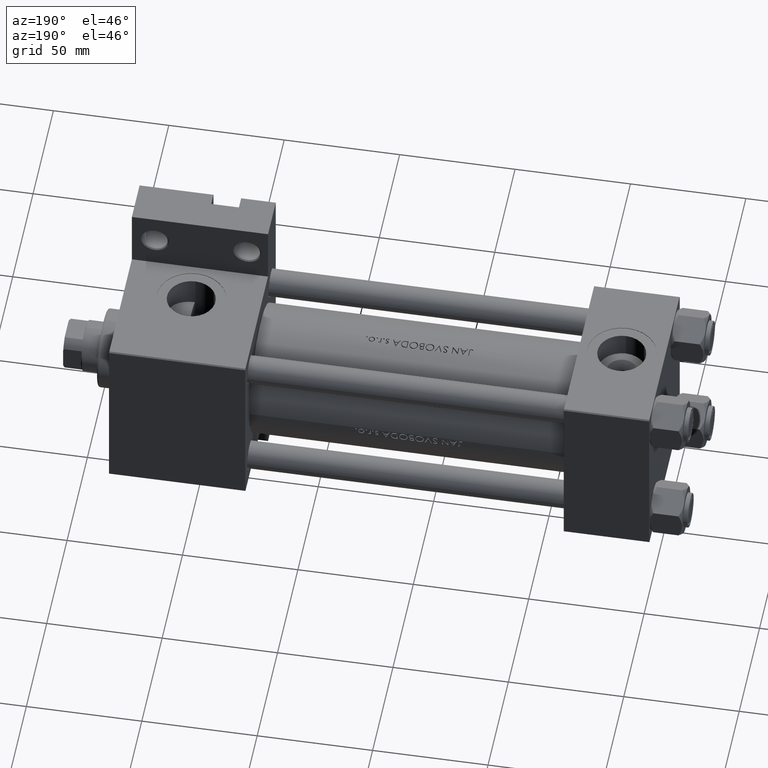
[diagram: clean part render]
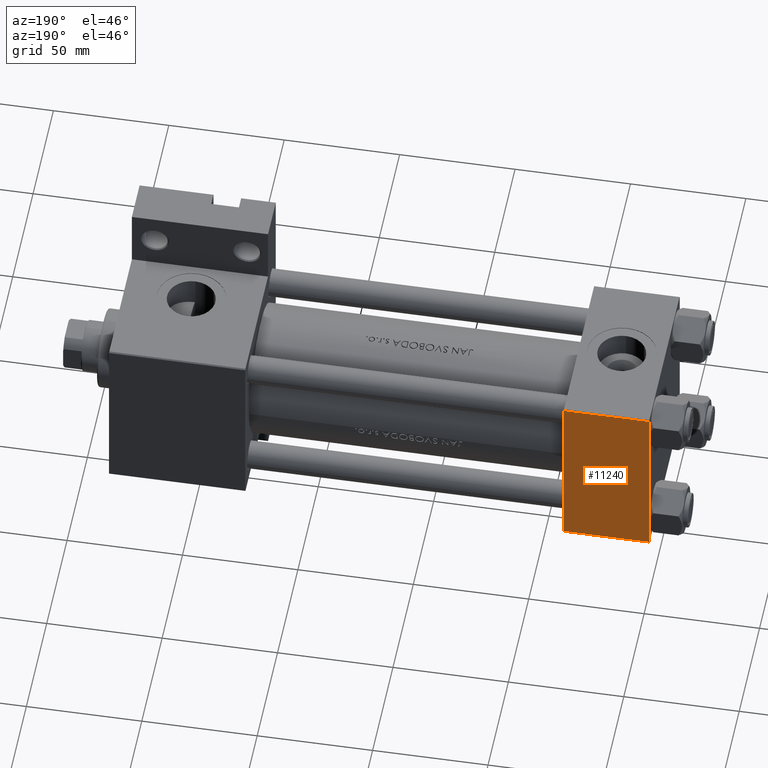
[diagram: same view with one face highlighted and labeled with its STEP entity id]
A machine part, auxiliary view. The second image highlights one B-rep face of the part: STEP entity #11240.
In plain terms, the highlighted planar face has unit normal (0, -1, -0).
Its self-contained STEP definition (entity closure, byte-faithful):
#728 = VERTEX_POINT ( 'NONE', #33155 ) ;
#1588 = ORIENTED_EDGE ( 'NONE', *, *, #11286, .T. ) ;
#1762 = CARTESIAN_POINT ( 'NONE',  ( 37.00000000000000000, -37.00000000000000711, 37.49999999999999289 ) ) ;
#5151 = VERTEX_POINT ( 'NONE', #25900 ) ;
#5977 = EDGE_CURVE ( 'NONE', #26714, #5151, #32265, .T. ) ;
#7653 = AXIS2_PLACEMENT_3D ( 'NONE', #35523, #19919, #26974 ) ;
#8899 = CARTESIAN_POINT ( 'NONE',  ( 37.00000000000000000, 36.99999999999999289, 37.50000000000000000 ) ) ;
#9562 = ORIENTED_EDGE ( 'NONE', *, *, #30145, .F. ) ;
#11240 = ADVANCED_FACE ( 'NONE', ( #31263 ), #27732, .F. ) ;
#11286 = EDGE_CURVE ( 'NONE', #14387, #26714, #34521, .T. ) ;
#13254 = CARTESIAN_POINT ( 'NONE',  ( 37.00000000000000000, 37.49999999999999289, 37.50000000000000000 ) ) ;
#14387 = VERTEX_POINT ( 'NONE', #8899 ) ;
#19919 = DIRECTION ( 'NONE',  ( 0.000000000000000000, 9.251858538542971581E-17, -1.000000000000000000 ) ) ;
#21073 = DIRECTION ( 'NONE',  ( 0.000000000000000000, -1.000000000000000000, -9.251858538542971581E-17 ) ) ;
#23977 = DIRECTION ( 'NONE',  ( 0.000000000000000000, -1.000000000000000000, -9.251858538542971581E-17 ) ) ;
#25900 = CARTESIAN_POINT ( 'NONE',  ( 0.000000000000000000, -37.00000000000000711, 37.49999999999999289 ) ) ;
#26714 = VERTEX_POINT ( 'NONE', #45749 ) ;
#26974 = DIRECTION ( 'NONE',  ( 0.000000000000000000, 1.000000000000000000, 9.251858538542971581E-17 ) ) ;
#27732 = PLANE ( 'NONE',  #7653 ) ;
#29721 = VECTOR ( 'NONE', #23977, 1000.000000000000000 ) ;
#30145 = EDGE_CURVE ( 'NONE', #14387, #728, #40911, .T. ) ;
#30410 = VECTOR ( 'NONE', #21073, 1000.000000000000000 ) ;
#31263 = FACE_OUTER_BOUND ( 'NONE', #35642, .T. ) ;
#31756 = CARTESIAN_POINT ( 'NONE',  ( 0.000000000000000000, 36.99999999999999289, 37.50000000000000000 ) ) ;
#32024 = CARTESIAN_POINT ( 'NONE',  ( 0.000000000000000000, 37.49999999999999289, 37.50000000000000000 ) ) ;
#32265 = LINE ( 'NONE', #32024, #29721 ) ;
#33155 = CARTESIAN_POINT ( 'NONE',  ( 37.00000000000000000, -37.00000000000000711, 37.49999999999999289 ) ) ;
#34521 = LINE ( 'NONE', #31756, #38168 ) ;
#35523 = CARTESIAN_POINT ( 'NONE',  ( 37.00000000000000000, 37.49999999999999289, 37.50000000000000000 ) ) ;
#35642 = EDGE_LOOP ( 'NONE', ( #37669, #38114, #9562, #1588 ) ) ;
#35702 = LINE ( 'NONE', #1762, #45016 ) ;
#37669 = ORIENTED_EDGE ( 'NONE', *, *, #5977, .T. ) ;
#38114 = ORIENTED_EDGE ( 'NONE', *, *, #40051, .T. ) ;
#38168 = VECTOR ( 'NONE', #42294, 1000.000000000000000 ) ;
#40051 = EDGE_CURVE ( 'NONE', #5151, #728, #35702, .T. ) ;
#40196 = DIRECTION ( 'NONE',  ( 1.000000000000000000, 0.000000000000000000, 0.000000000000000000 ) ) ;
#40911 = LINE ( 'NONE', #13254, #30410 ) ;
#42294 = DIRECTION ( 'NONE',  ( -1.000000000000000000, 0.000000000000000000, 0.000000000000000000 ) ) ;
#45016 = VECTOR ( 'NONE', #40196, 1000.000000000000000 ) ;
#45749 = CARTESIAN_POINT ( 'NONE',  ( 0.000000000000000000, 36.99999999999999289, 37.50000000000000000 ) ) ;